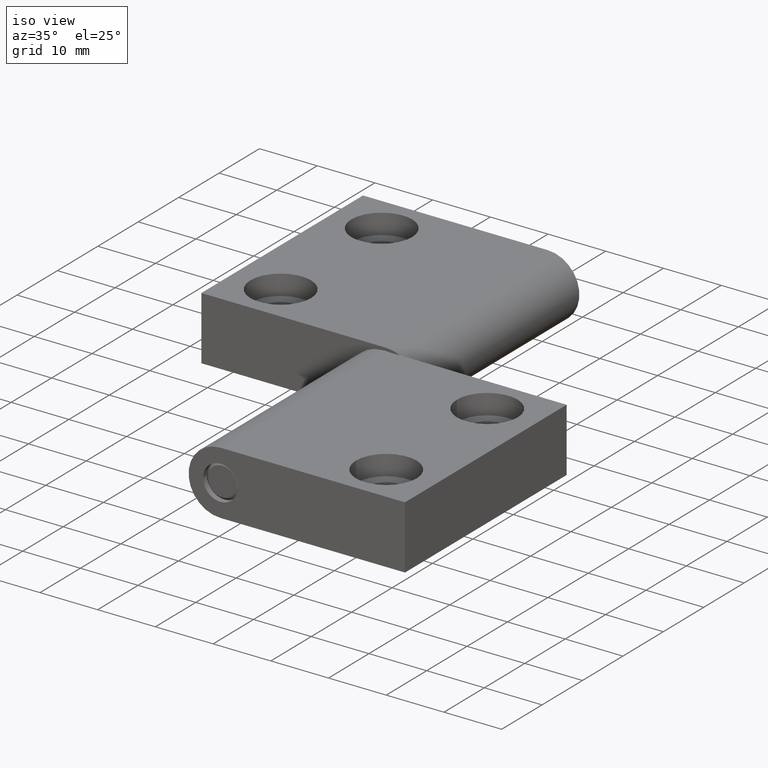
[diagram: clean part render]
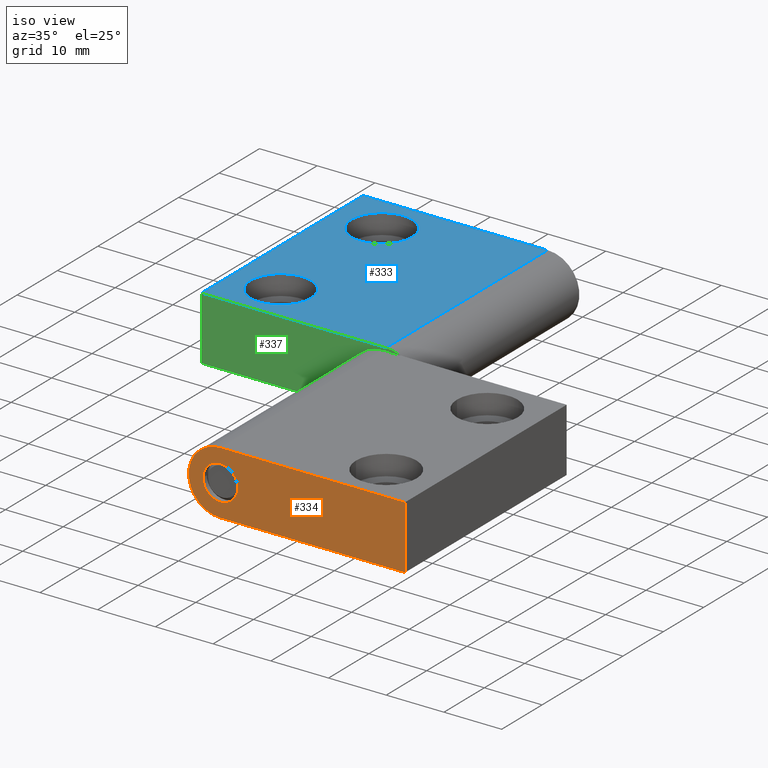
[diagram: same view with three faces highlighted in distinct colors, each labeled with its STEP entity id]
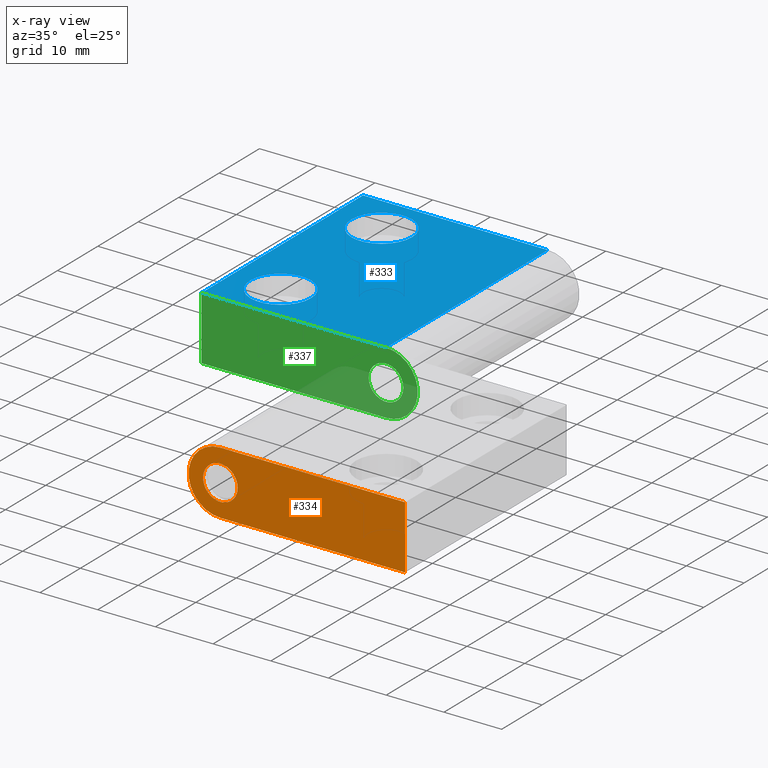
[diagram: x-ray of the same camera — body ghosted, the three highlighted faces saturated]
A machine part, iso view with three faces highlighted in distinct colors.
The next image is the same camera in x-ray (body ghosted, the three faces saturated) — at least one of them is partly hidden behind the body in this view.
Their STEP definitions:

[orange] entity #334 — the highlighted planar face has unit normal (0, 1, 0).
#43=FACE_BOUND('',#90,.T.);
#52=PLANE('',#455);
#65=FACE_OUTER_BOUND('',#89,.T.);
#89=EDGE_LOOP('',(#256,#257,#258,#259));
#90=EDGE_LOOP('',(#260));
#119=LINE('',#633,#139);
#122=LINE('',#643,#142);
#123=LINE('',#644,#143);
#139=VECTOR('',#515,10.);
#142=VECTOR('',#524,10.);
#143=VECTOR('',#525,11.9999759999521);
#156=CIRCLE('',#447,3.);
#159=CIRCLE('',#451,5.49998799997604);
#176=VERTEX_POINT('',#617);
#180=VERTEX_POINT('',#626);
#181=VERTEX_POINT('',#628);
#182=VERTEX_POINT('',#632);
#186=VERTEX_POINT('',#642);
#202=EDGE_CURVE('',#176,#176,#156,.T.);
#207=EDGE_CURVE('',#181,#180,#159,.T.);
#209=EDGE_CURVE('',#182,#181,#119,.T.);
#214=EDGE_CURVE('',#180,#186,#122,.T.);
#215=EDGE_CURVE('',#182,#186,#123,.T.);
#256=ORIENTED_EDGE('',*,*,#214,.T.);
#257=ORIENTED_EDGE('',*,*,#215,.F.);
#258=ORIENTED_EDGE('',*,*,#209,.T.);
#259=ORIENTED_EDGE('',*,*,#207,.T.);
#260=ORIENTED_EDGE('',*,*,#202,.T.);
#334=ADVANCED_FACE('',(#65,#43),#52,.F.);
#447=AXIS2_PLACEMENT_3D('',#618,#500,#501);
#451=AXIS2_PLACEMENT_3D('',#629,#510,#511);
#455=AXIS2_PLACEMENT_3D('',#641,#522,#523);
#500=DIRECTION('center_axis',(0.,1.,0.));
#501=DIRECTION('ref_axis',(1.,0.,0.));
#510=DIRECTION('center_axis',(0.,-1.,0.));
#511=DIRECTION('ref_axis',(0.,0.,1.));
#515=DIRECTION('',(-1.,0.,0.));
#522=DIRECTION('center_axis',(0.,1.,0.));
#523=DIRECTION('ref_axis',(0.,0.,1.));
#524=DIRECTION('',(1.,0.,0.));
#525=DIRECTION('',(0.,0.,-1.));
#617=CARTESIAN_POINT('',(5.49989699988602,32.4998549997101,5.99998799997605));
#618=CARTESIAN_POINT('Origin',(8.49989699988602,32.4998549997101,5.99998799997605));
#626=CARTESIAN_POINT('',(8.49989699988602,32.4998549997101,0.500000000000009));
#628=CARTESIAN_POINT('',(8.49989699988602,32.4998549997101,11.4999759999521));
#629=CARTESIAN_POINT('Origin',(8.49989699988602,32.4998549997101,5.99998799997605));
#632=CARTESIAN_POINT('',(40.499896999886,32.4998549997101,11.4999759999521));
#633=CARTESIAN_POINT('',(13.999896999886,32.4998549997101,11.4999759999521));
#641=CARTESIAN_POINT('Origin',(1.49999354466354,32.4998549997101,13.1999793947969));
#642=CARTESIAN_POINT('',(40.499896999886,32.4998549997101,0.500000000000004));
#643=CARTESIAN_POINT('',(13.249966072143,32.4998549997101,0.500000000000005));
#644=CARTESIAN_POINT('',(40.499896999886,32.4998549997101,11.9999759999521));

[blue] entity #333 — the highlighted planar face has unit normal (0, 0, 1).
#41=FACE_BOUND('',#87,.T.);
#42=FACE_BOUND('',#88,.T.);
#51=PLANE('',#452);
#64=FACE_OUTER_BOUND('',#86,.T.);
#86=EDGE_LOOP('',(#250,#251,#252,#253));
#87=EDGE_LOOP('',(#254));
#88=EDGE_LOOP('',(#255));
#118=LINE('',#630,#138);
#119=LINE('',#633,#139);
#120=LINE('',#635,#140);
#121=LINE('',#636,#141);
#138=VECTOR('',#512,10.);
#139=VECTOR('',#515,10.);
#140=VECTOR('',#516,10.);
#141=VECTOR('',#517,10.);
#160=CIRCLE('',#453,5.24998949997894);
#161=CIRCLE('',#454,5.24998949997894);
#178=VERTEX_POINT('',#623);
#181=VERTEX_POINT('',#628);
#182=VERTEX_POINT('',#632);
#183=VERTEX_POINT('',#634);
#184=VERTEX_POINT('',#637);
#185=VERTEX_POINT('',#639);
#208=EDGE_CURVE('',#181,#178,#118,.T.);
#209=EDGE_CURVE('',#182,#181,#119,.T.);
#210=EDGE_CURVE('',#183,#182,#120,.T.);
#211=EDGE_CURVE('',#178,#183,#121,.T.);
#212=EDGE_CURVE('',#184,#184,#160,.T.);
#213=EDGE_CURVE('',#185,#185,#161,.T.);
#250=ORIENTED_EDGE('',*,*,#209,.F.);
#251=ORIENTED_EDGE('',*,*,#210,.F.);
#252=ORIENTED_EDGE('',*,*,#211,.F.);
#253=ORIENTED_EDGE('',*,*,#208,.F.);
#254=ORIENTED_EDGE('',*,*,#212,.F.);
#255=ORIENTED_EDGE('',*,*,#213,.F.);
#333=ADVANCED_FACE('',(#64,#41,#42),#51,.T.);
#452=AXIS2_PLACEMENT_3D('',#631,#513,#514);
#453=AXIS2_PLACEMENT_3D('',#638,#518,#519);
#454=AXIS2_PLACEMENT_3D('',#640,#520,#521);
#512=DIRECTION('',(0.,1.,0.));
#513=DIRECTION('center_axis',(0.,0.,1.));
#514=DIRECTION('ref_axis',(1.,0.,0.));
#515=DIRECTION('',(-1.,0.,0.));
#516=DIRECTION('',(0.,-1.,0.));
#517=DIRECTION('',(1.,0.,0.));
#518=DIRECTION('center_axis',(0.,0.,1.));
#519=DIRECTION('ref_axis',(1.,0.,0.));
#520=DIRECTION('center_axis',(0.,0.,1.));
#521=DIRECTION('ref_axis',(1.,0.,0.));
#623=CARTESIAN_POINT('',(8.49989699988602,72.4998549997101,11.4999759999521));
#628=CARTESIAN_POINT('',(8.49989699988602,32.4998549997101,11.4999759999521));
#630=CARTESIAN_POINT('',(8.49989699988602,32.4998549997101,11.4999759999521));
#631=CARTESIAN_POINT('Origin',(25.74993699992,52.4998549997101,11.4999759999521));
#632=CARTESIAN_POINT('',(40.499896999886,32.4998549997101,11.4999759999521));
#633=CARTESIAN_POINT('',(13.999896999886,32.4998549997101,11.4999759999521));
#634=CARTESIAN_POINT('',(40.499896999886,72.4998549997101,11.4999759999521));
#635=CARTESIAN_POINT('',(40.499896999886,62.4998549997101,11.4999759999521));
#636=CARTESIAN_POINT('',(13.6249652722918,72.4998549997101,11.4999759999521));
#637=CARTESIAN_POINT('',(26.7499214999352,64.99986999974,11.4999759999521));
#638=CARTESIAN_POINT('Origin',(31.9999109999142,64.99986999974,11.4999759999521));
#639=CARTESIAN_POINT('',(26.7499214999352,39.9999199998401,11.4999759999521));
#640=CARTESIAN_POINT('Origin',(31.9999109999142,39.9999199998401,11.4999759999521));

[green] entity #337 — the highlighted planar face has unit normal (-0, -1, 0).
#46=FACE_BOUND('',#96,.T.);
#55=PLANE('',#460);
#68=FACE_OUTER_BOUND('',#95,.T.);
#95=EDGE_LOOP('',(#271,#272,#273,#274));
#96=EDGE_LOOP('',(#275));
#121=LINE('',#636,#141);
#124=LINE('',#647,#144);
#126=LINE('',#654,#146);
#141=VECTOR('',#517,10.);
#144=VECTOR('',#528,10.);
#146=VECTOR('',#536,11.9999759999521);
#157=CIRCLE('',#448,3.);
#158=CIRCLE('',#450,5.49998799997604);
#177=VERTEX_POINT('',#619);
#178=VERTEX_POINT('',#623);
#179=VERTEX_POINT('',#624);
#183=VERTEX_POINT('',#634);
#187=VERTEX_POINT('',#646);
#204=EDGE_CURVE('',#177,#177,#157,.T.);
#205=EDGE_CURVE('',#178,#179,#158,.T.);
#211=EDGE_CURVE('',#178,#183,#121,.T.);
#216=EDGE_CURVE('',#179,#187,#124,.T.);
#220=EDGE_CURVE('',#183,#187,#126,.T.);
#271=ORIENTED_EDGE('',*,*,#211,.T.);
#272=ORIENTED_EDGE('',*,*,#220,.T.);
#273=ORIENTED_EDGE('',*,*,#216,.F.);
#274=ORIENTED_EDGE('',*,*,#205,.F.);
#275=ORIENTED_EDGE('',*,*,#204,.T.);
#337=ADVANCED_FACE('',(#68,#46),#55,.T.);
#448=AXIS2_PLACEMENT_3D('',#621,#503,#504);
#450=AXIS2_PLACEMENT_3D('',#625,#507,#508);
#460=AXIS2_PLACEMENT_3D('',#655,#537,#538);
#503=DIRECTION('center_axis',(0.,-1.,0.));
#504=DIRECTION('ref_axis',(1.,0.,0.));
#507=DIRECTION('center_axis',(0.,-1.,0.));
#508=DIRECTION('ref_axis',(0.,0.,1.));
#517=DIRECTION('',(1.,0.,0.));
#528=DIRECTION('',(1.,0.,0.));
#536=DIRECTION('',(0.,0.,-1.));
#537=DIRECTION('center_axis',(0.,1.,0.));
#538=DIRECTION('ref_axis',(0.,0.,1.));
#619=CARTESIAN_POINT('',(5.49989699988602,72.4998549997101,5.99998799997605));
#621=CARTESIAN_POINT('Origin',(8.49989699988602,72.4998549997101,5.99998799997605));
#623=CARTESIAN_POINT('',(8.49989699988602,72.4998549997101,11.4999759999521));
#624=CARTESIAN_POINT('',(8.49989699988602,72.4998549997101,0.500000000000009));
#625=CARTESIAN_POINT('Origin',(8.49989699988602,72.4998549997101,5.99998799997605));
#634=CARTESIAN_POINT('',(40.499896999886,72.4998549997101,11.4999759999521));
#636=CARTESIAN_POINT('',(13.6249652722918,72.4998549997101,11.4999759999521));
#646=CARTESIAN_POINT('',(40.499896999886,72.4998549997101,0.500000000000004));
#647=CARTESIAN_POINT('',(11.249899999892,72.4998549997101,0.500000000000009));
#654=CARTESIAN_POINT('',(40.499896999886,72.4998549997101,11.9999759999521));
#655=CARTESIAN_POINT('Origin',(1.49999354466354,72.4998549997101,13.1999793947969));